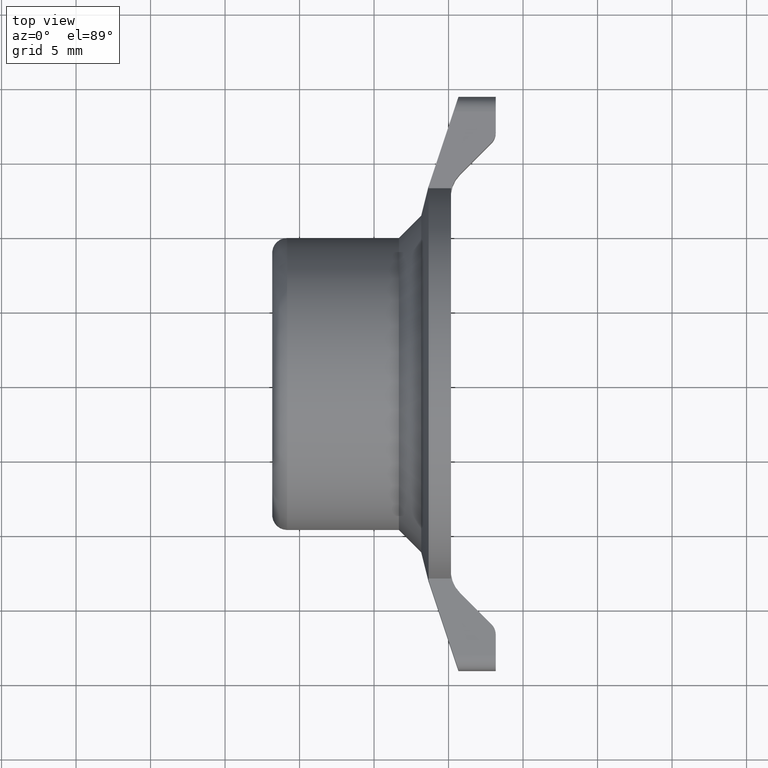
[diagram: clean part render]
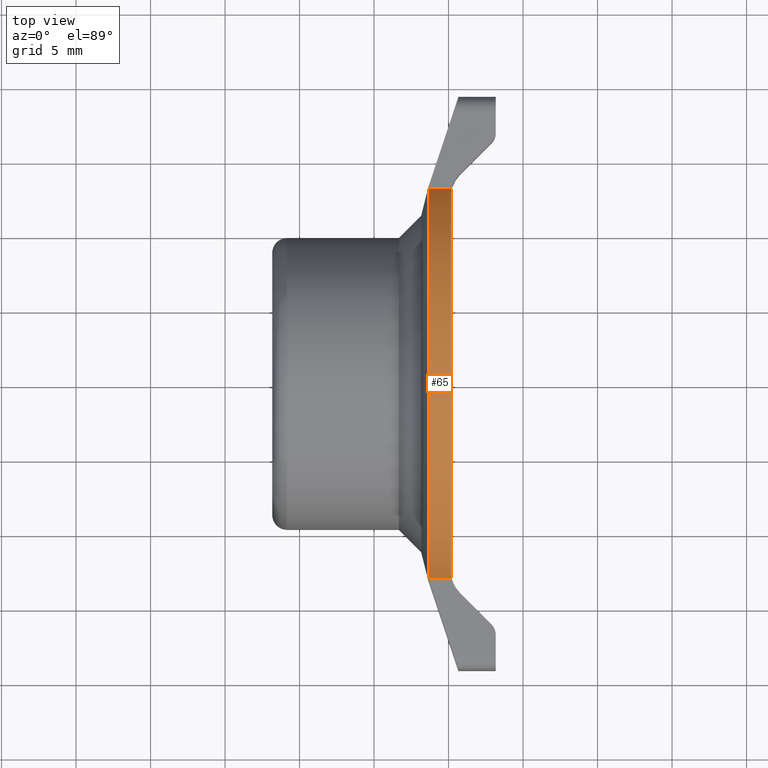
[diagram: same view with one face highlighted and labeled with its STEP entity id]
A machine part, top view. The second image highlights one B-rep face of the part: STEP entity #65.
In plain terms, the highlighted cylindrical surface (partial cylindrical patch) has radius 13.3 mm, axis along (-1, 0, 0).
Its self-contained STEP definition (entity closure, byte-faithful):
#65=ADVANCED_FACE('',(#120),#526,.T.);
#120=FACE_OUTER_BOUND('',#176,.F.);
#176=EDGE_LOOP('',(#253,#254,#255,#256,#257,#258));
#253=ORIENTED_EDGE('',*,*,#742,.T.);
#254=ORIENTED_EDGE('',*,*,#725,.T.);
#255=ORIENTED_EDGE('',*,*,#758,.T.);
#256=ORIENTED_EDGE('',*,*,#730,.F.);
#257=ORIENTED_EDGE('',*,*,#741,.F.);
#258=ORIENTED_EDGE('',*,*,#751,.T.);
#526=CYLINDRICAL_SURFACE('',#1112,13.3);
#545=LINE('',#1635,#625);
#550=LINE('',#1640,#630);
#559=LINE('',#1651,#639);
#560=LINE('',#1652,#640);
#625=VECTOR('',#1193,0.0100000000000051);
#630=VECTOR('',#1198,0.00999999999999091);
#639=VECTOR('',#1211,1.48999999999999);
#640=VECTOR('',#1212,1.48999999999999);
#725=EDGE_CURVE('',#986,#985,#545,.T.);
#730=EDGE_CURVE('',#980,#979,#550,.T.);
#741=EDGE_CURVE('',#968,#980,#559,.T.);
#742=EDGE_CURVE('',#967,#986,#560,.T.);
#751=EDGE_CURVE('',#968,#967,#875,.T.);
#758=EDGE_CURVE('',#985,#979,#882,.T.);
#875=CIRCLE('',#1062,13.3);
#882=CIRCLE('',#1069,13.3);
#967=VERTEX_POINT('',#1539);
#968=VERTEX_POINT('',#1540);
#979=VERTEX_POINT('',#1551);
#980=VERTEX_POINT('',#1552);
#985=VERTEX_POINT('',#1557);
#986=VERTEX_POINT('',#1558);
#1062=AXIS2_PLACEMENT_3D('',#1661,#1225,#1226);
#1069=AXIS2_PLACEMENT_3D('',#1668,#1239,#1240);
#1112=AXIS2_PLACEMENT_3D('',#1771,#1385,#1386);
#1193=DIRECTION('',(1.,0.,0.));
#1198=DIRECTION('',(1.,0.,0.));
#1211=DIRECTION('',(1.,0.,0.));
#1212=DIRECTION('',(1.,0.,0.));
#1225=DIRECTION('',(-1.,0.,0.));
#1226=DIRECTION('',(0.,-0.984933707898515,0.172932330827069));
#1239=DIRECTION('',(1.,0.,0.));
#1240=DIRECTION('',(0.,0.984933707898515,0.172932330827066));
#1385=DIRECTION('',(-1.,0.,0.));
#1386=DIRECTION('',(0.,-1.,0.));
#1539=CARTESIAN_POINT('',(88.6649997146962,-36.9003781121427,130.800000055078));
#1540=CARTESIAN_POINT('',(88.6649997146962,-63.0996147422432,130.800000055078));
#1551=CARTESIAN_POINT('',(90.1649997146962,-63.0996147422432,130.800000055078));
#1552=CARTESIAN_POINT('',(90.1549997146961,-63.0996147422432,130.800000055078));
#1557=CARTESIAN_POINT('',(90.1649997146961,-36.9003781121427,130.800000055078));
#1558=CARTESIAN_POINT('',(90.1549997146961,-36.9003781121427,130.800000055078));
#1635=CARTESIAN_POINT('',(90.1549997146961,-36.9003781121427,130.800000055078));
#1640=CARTESIAN_POINT('',(90.1549997146962,-63.0996147422432,130.800000055078));
#1651=CARTESIAN_POINT('',(88.6649997146962,-63.0996147422432,130.800000055078));
#1652=CARTESIAN_POINT('',(88.6649997146962,-36.9003781121427,130.800000055078));
#1661=CARTESIAN_POINT('',(88.6649997146962,-49.999996427193,128.500000055078));
#1668=CARTESIAN_POINT('',(90.1649997146962,-49.999996427193,128.500000055078));
#1771=CARTESIAN_POINT('',(88.1649997146962,-49.999996427193,128.500000055078));